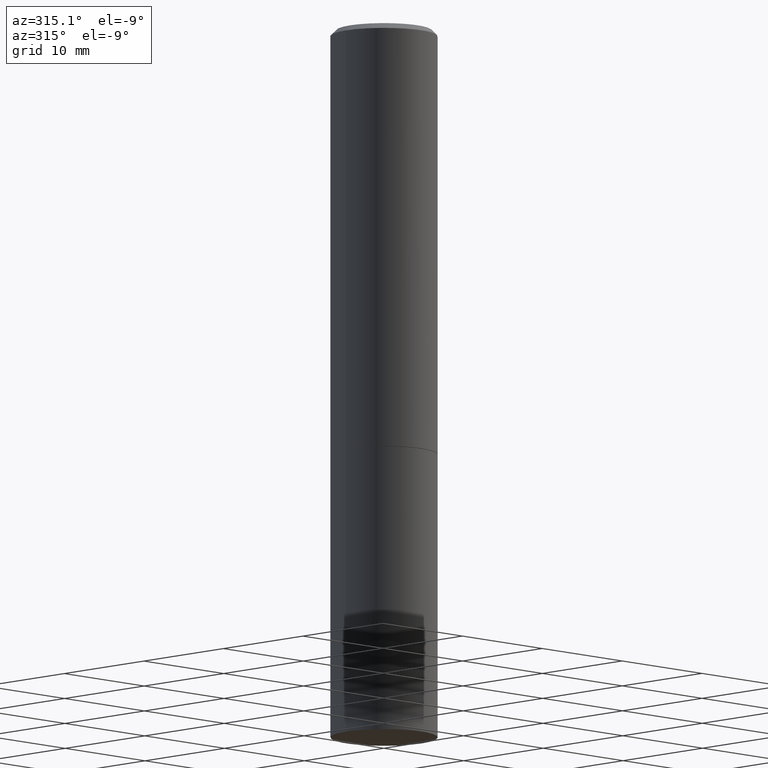
[diagram: clean part render]
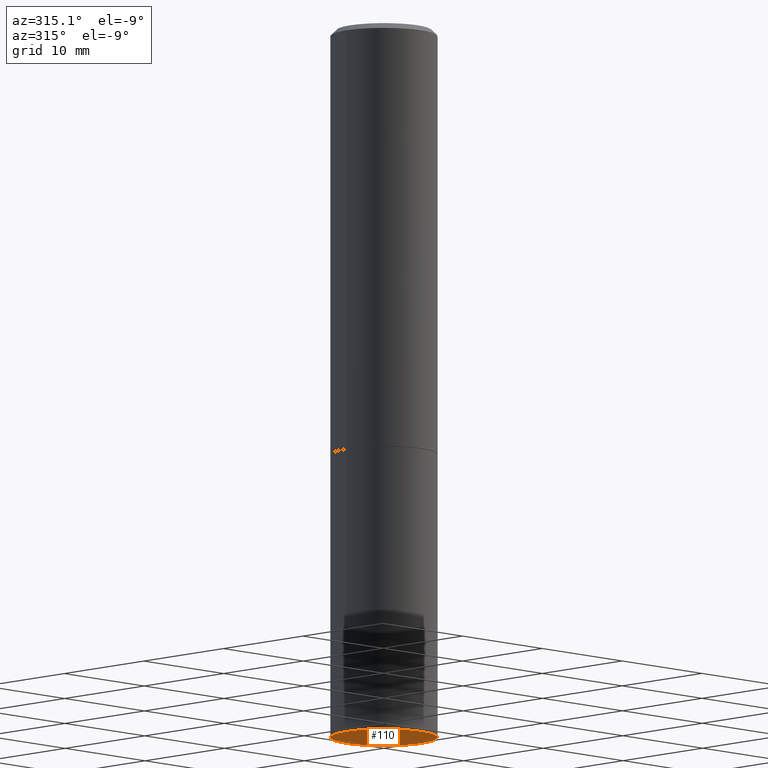
[diagram: same view with one face highlighted and labeled with its STEP entity id]
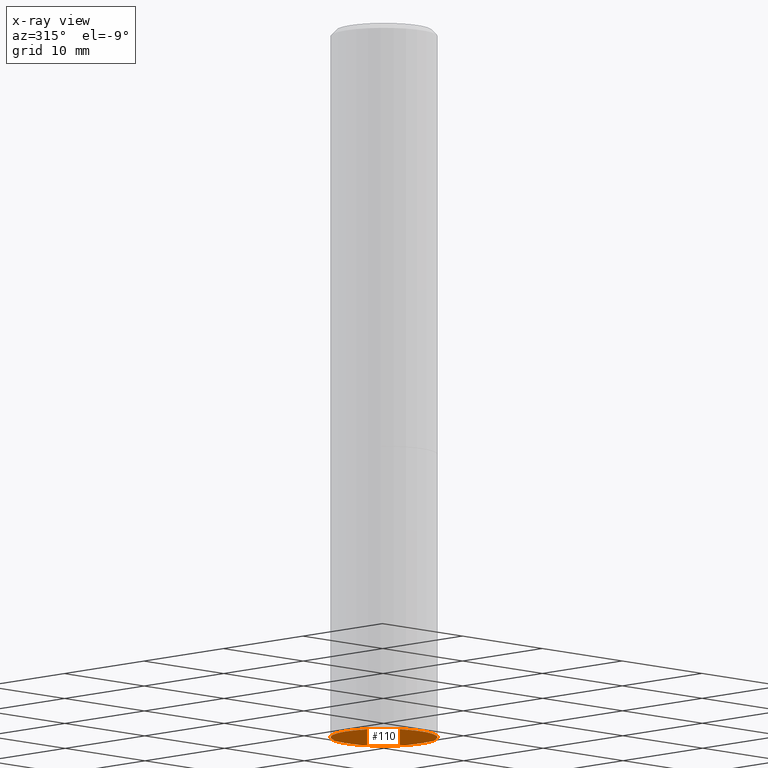
[diagram: x-ray of the same camera — body ghosted, the highlighted face saturated]
A machine part, auxiliary view. The second image highlights one B-rep face of the part: STEP entity #110.
The next image is the same camera in x-ray: the body ghosted, the highlighted face saturated — about 0% of this face is hidden behind the body in this view.
In plain terms, the highlighted planar face has unit normal (0, -0, -1).
Its self-contained STEP definition (entity closure, byte-faithful):
#3 = DIRECTION ( 'NONE',  ( -2.445468806185136597E-29, 3.491481338843145583E-15, 1.000000000000000000 ) ) ;
#4 = DIRECTION ( 'NONE',  ( -2.445468806185136597E-29, 3.491481338843145583E-15, 1.000000000000000000 ) ) ;
#76 = DIRECTION ( 'NONE',  ( -1.000000000000000000, 6.982962677686265922E-15, -4.876176775795935793E-29 ) ) ;
#89 = FACE_OUTER_BOUND ( 'NONE', #190, .T. ) ;
#110 = ADVANCED_FACE ( 'NONE', ( #89 ), #130, .T. ) ;
#111 = DIRECTION ( 'NONE',  ( 1.000000000000000000, -6.982962677686266711E-15, 0.000000000000000000 ) ) ;
#112 = CARTESIAN_POINT ( 'NONE',  ( 6.113672015462842613E-29, -8.728703347107864943E-15, -2.500000000000000000 ) ) ;
#117 = DIRECTION ( 'NONE',  ( 1.000000000000000000, -6.982962677686266711E-15, 0.000000000000000000 ) ) ;
#120 = CARTESIAN_POINT ( 'NONE',  ( 0.1875000000000000278, -1.003800884917403995E-14, -2.500000000000000000 ) ) ;
#126 = ORIENTED_EDGE ( 'NONE', *, *, #185, .F. ) ;
#130 = PLANE ( 'NONE',  #221 ) ;
#173 = EDGE_CURVE ( 'NONE', #270, #252, #233, .T. ) ;
#185 = EDGE_CURVE ( 'NONE', #252, #270, #299, .T. ) ;
#188 = AXIS2_PLACEMENT_3D ( 'NONE', #342, #4, #111 ) ;
#190 = EDGE_LOOP ( 'NONE', ( #241, #126 ) ) ;
#207 = CARTESIAN_POINT ( 'NONE',  ( 1.309305502066236145E-15, 0.1874999999999912847, -2.500000000000000444 ) ) ;
#221 = AXIS2_PLACEMENT_3D ( 'NONE', #207, #327, #76 ) ;
#229 = CARTESIAN_POINT ( 'NONE',  ( -0.1875000000000000278, -5.650695048136103317E-15, -2.500000000000000000 ) ) ;
#233 = CIRCLE ( 'NONE', #358, 0.1875000000000000278 ) ;
#241 = ORIENTED_EDGE ( 'NONE', *, *, #173, .F. ) ;
#252 = VERTEX_POINT ( 'NONE', #229 ) ;
#270 = VERTEX_POINT ( 'NONE', #120 ) ;
#299 = CIRCLE ( 'NONE', #188, 0.1875000000000000278 ) ;
#327 = DIRECTION ( 'NONE',  ( 2.438088387897960049E-29, -3.491481338843145188E-15, -1.000000000000000000 ) ) ;
#342 = CARTESIAN_POINT ( 'NONE',  ( 6.113672015462842613E-29, -8.728703347107864943E-15, -2.500000000000000000 ) ) ;
#358 = AXIS2_PLACEMENT_3D ( 'NONE', #112, #3, #117 ) ;